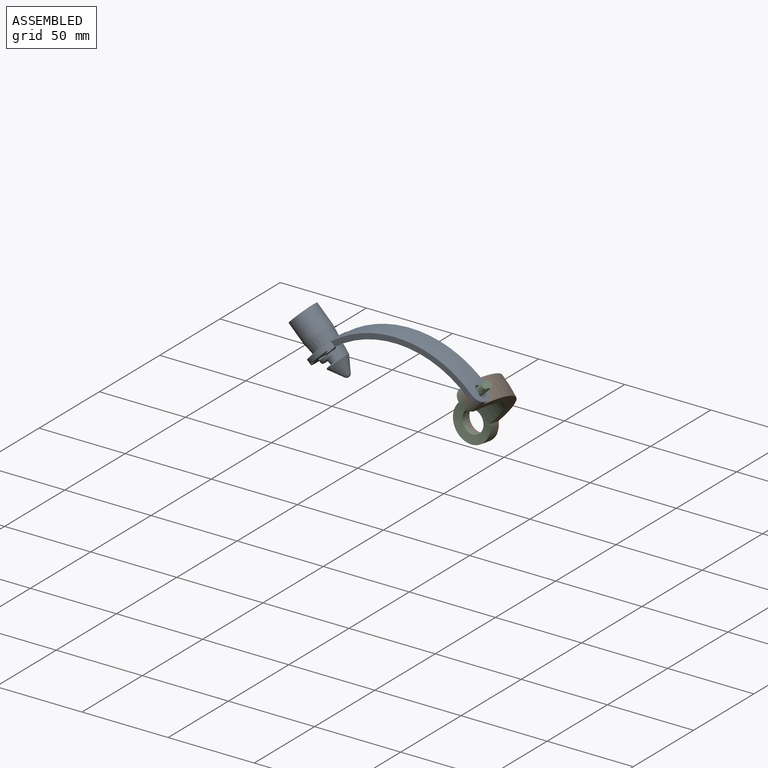
[diagram: assembled view]
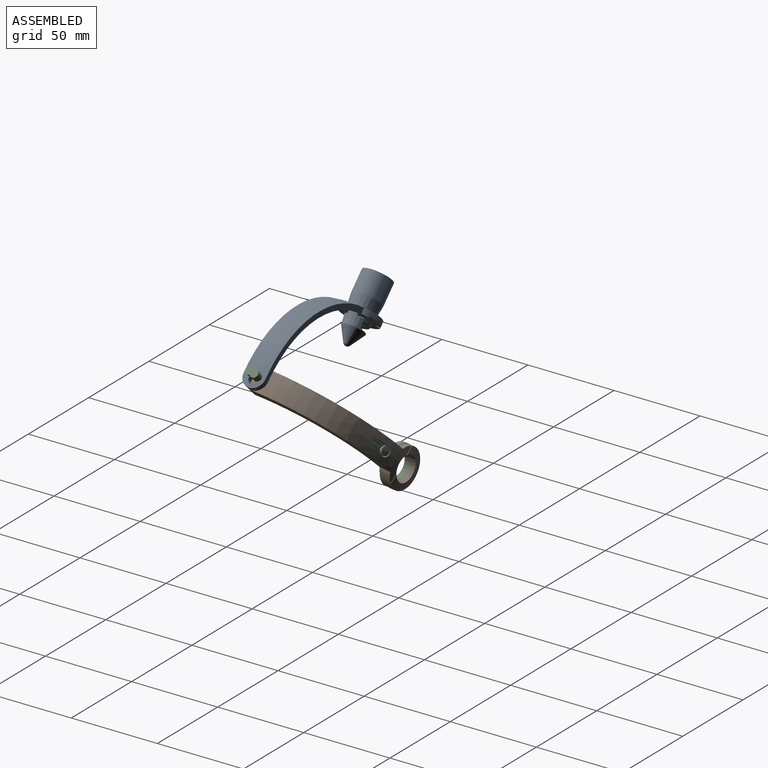
[diagram: assembled view, second angle]
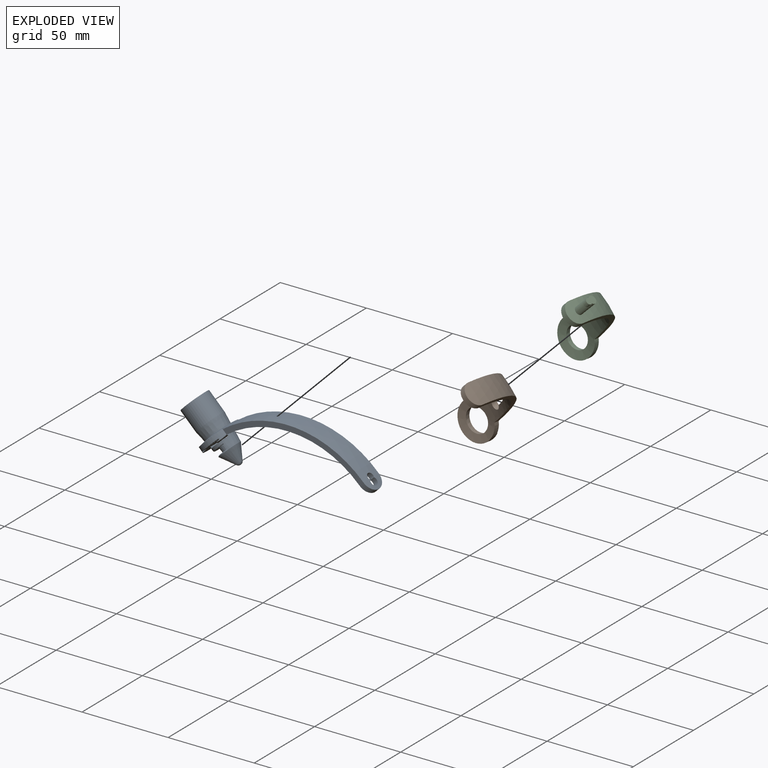
[diagram: exploded view]
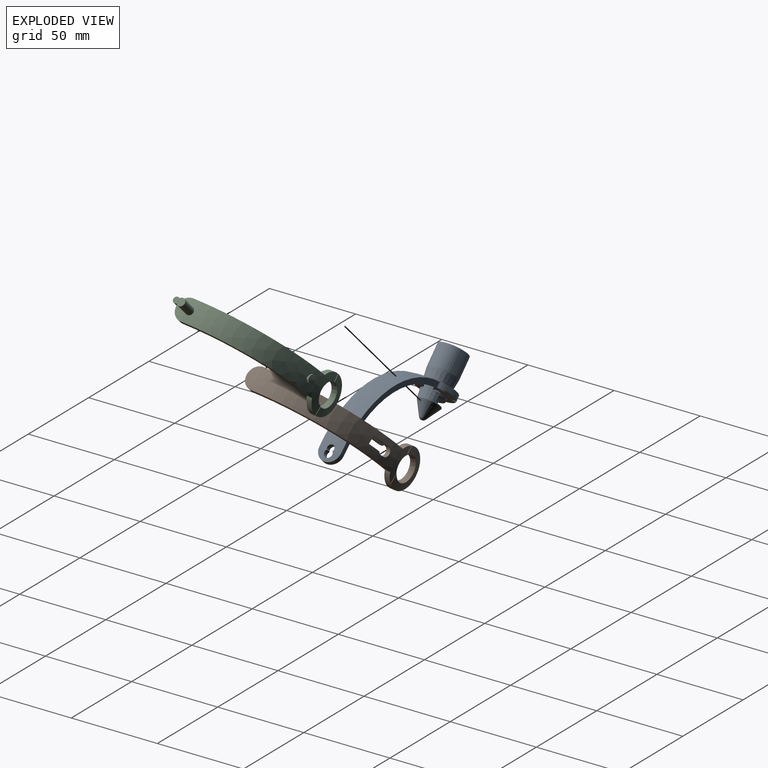
[diagram: exploded view, second angle]
ASSEMBLY  parts=3 mates=2
PART A: 36 faces, bbox 112.8x26.4x33.2 mm
  f0: sphere r=60.07mm, area 1159.1mm2, adj f1,f2,f6,f9,f10,f11,f26,f27
  f1: cone r=6.43mm half-angle=6.9deg, axis (-0.71,0,0.71), area 134.6mm2, adj f0,f2,f3,f4,f5,f17,f21,f24
  f2: cone r=6.43mm half-angle=6.9deg, axis (-0.71,0,0.71), area 0.2mm2, adj f0,f1,f33
  f3: cone r=46.21mm half-angle=50deg, axis (-1,0,0), area 0.2mm2, adj f1,f5,f30
  f4: cone r=46.21mm half-angle=50deg, axis (-1,0,0), area 0.2mm2, adj f1,f5,f30
  f5: sphere r=60.32mm, area 100.4mm2, adj f1,f3,f4,f6,f29,f30,f32
  f6: cylinder r=11.43mm len=22.86mm, axis (0.71,0,-0.71), area 177.8mm2, adj f0,f5,f10,f11,f13,f29,f30,f32
  f7: cone r=3.13mm half-angle=3.1deg, axis (-0.71,0,0.71), area 530mm2, adj f14,f30
  f8: sphere r=63.25mm, area 1174.1mm2, adj f9,f10,f11,f12,f26,f27
  f9: cylinder r=2.28mm len=5mm, axis (0.73,0,0.68), area 34mm2, adj f0,f8,f27
  f10: plane 81.94x20.69mm, normal (0,1,0), area 277.1mm2, adj f0,f6,f8,f12,f13,f26
  f11: plane 81.94x20.69mm, normal (0,-1,0), area 277.1mm2, adj f0,f6,f8,f12,f13,f26
  f12: cone r=51.37mm half-angle=54deg, axis (-1,0,0), area 3.2mm2, adj f8,f10,f11,f13
  f13: sphere r=63.5mm, area 217.3mm2, adj f6,f10,f11,f12,f16
  f14: plane 16.76x11.85mm, normal (-0.71,0,0.71), area 160.1mm2, adj f7,f15
  f15: cylinder r=8.38mm len=20.83mm, axis (0.71,0,-0.71), area 668.9mm2, adj f14,f16
  f16: cone r=6.43mm half-angle=6.9deg, axis (-0.71,0,0.71), area 310.5mm2, adj f13,f15
  f17: cone r=1.8mm half-angle=30.4deg, axis (-0.71,0,0.71), area 236.6mm2, adj f1,f18,f22
  f18: sphere r=2.09mm, area 13.5mm2, adj f17
  f19: cone r=3.81mm half-angle=3.1deg, axis (-0.71,0,0.71), area 47.6mm2, adj f20,f23,f24,f25
  f20: sphere r=56.9mm, area 56.4mm2, adj f19,f21,f24,f25
  f21: torus R=6.4mm, axis (-0.71,0,0.71), area 23.1mm2, adj f1,f20,f24,f25
  f22: torus R=5.93mm, axis (-0.71,0,0.71), area 22mm2, adj f17,f23,f24,f25
  f23: sphere r=53.98mm, area 49.2mm2, adj f19,f22,f24,f25
  f24: plane 3.67x3.54mm, normal (-0.58,0.57,-0.58), area 8.7mm2, adj f1,f19,f20,f21,f22,f23
  f25: plane 3.67x3.54mm, normal (-0.58,-0.57,-0.58), area 8.7mm2, adj f1,f19,f20,f21,f22,f23
  f26: cylinder r=6.35mm len=12.7mm, axis (-0.71,0,-0.71), area 63.7mm2, adj f0,f8,f10,f11
  f27: cylinder r=2.03mm len=4.64mm, axis (-0.73,0,-0.68), area 28.5mm2, adj f0,f8,f9
  f28: plane 5.92x0.91mm, normal (0.71,0,0.71), area 7mm2, adj f1,f30,f31
  f29: plane 3.62x0.32mm, normal (0.71,0,0.71), area 0.8mm2, adj f5,f6,f30
  f30: plane 22.88x9.36mm, normal (0.71,0,-0.71), area 212.6mm2, adj f1,f3,f4,f5,f6,f7,f28,f29
  f31: plane 14.16x9.34mm, normal (-0.71,0,0.71), area 123.3mm2, adj f1,f28,f33,f35
  f32: plane 3.62x0.32mm, normal (0.71,0,0.71), area 0.8mm2, adj f5,f6,f30
  f33: plane 18.67x0.91mm, normal (-0.71,0,-0.71), area 11.2mm2, adj f0,f1,f2,f6,f30,f31
  f34: cone r=0mm half-angle=28.2deg, axis (-0.71,0,0.71), area 65.4mm2, adj f35
  f35: cone r=3.13mm half-angle=3.1deg, axis (-0.71,0,0.71), area 1mm2, adj f31,f34
PART B: 21 faces, bbox 96.8x31.8x29.9 mm
  f0: sphere r=56.9mm, area 1144.5mm2, adj f2,f3,f6,f7,f8,f9,f14,f15
  f1: sphere r=60.07mm, area 1134.9mm2, adj f6,f7,f11,f12,f14,f15,f16,f17
  f2: plane 7.97x4.53mm, normal (0,1,0), area 14.9mm2, adj f0,f4,f17,f20
  f3: plane 7.97x4.53mm, normal (0,-1,0), area 14.9mm2, adj f0,f5,f17,f20
  f4: cylinder r=58.8mm len=9.51mm, axis (0,-1,0), area 10.9mm2, adj f2,f17,f19,f20
  f5: cylinder r=58.8mm len=9.51mm, axis (0,-1,0), area 10.9mm2, adj f3,f17,f18,f20
  f6: plane 77.22x19.75mm, normal (0,1,0), area 261.2mm2, adj f0,f1,f14,f16
  f7: plane 77.22x19.75mm, normal (0,-1,0), area 261.2mm2, adj f0,f1,f14,f16
  f8: cone r=40.93mm half-angle=46deg, axis (-1,0,0), area 1.2mm2, adj f0,f10,f14,f15
  f9: cone r=40.93mm half-angle=46deg, axis (-1,0,0), area 1.2mm2, adj f0,f10,f14,f15
  f10: sphere r=57.15mm, area 135.1mm2, adj f8,f9,f14,f15
  f11: cone r=46.21mm half-angle=50deg, axis (-1,0,0), area 1.4mm2, adj f1,f13,f14,f15
  f12: cone r=46.21mm half-angle=50deg, axis (-1,0,0), area 1.4mm2, adj f1,f13,f14,f15
  f13: sphere r=60.32mm, area 166.4mm2, adj f11,f12,f14,f15
  f14: cylinder r=11.43mm len=22.86mm, axis (0.71,0,-0.71), area 191.3mm2, adj f0,f1,f6,f7,f8,f9,f10,f11
  f15: cone r=6.43mm half-angle=6.9deg, axis (-0.71,0,0.71), area 143.2mm2, adj f0,f1,f8,f9,f10,f11,f12,f13
  f16: cylinder r=6.35mm len=12.7mm, axis (-0.71,0,-0.71), area 63.7mm2, adj f0,f1,f6,f7
  f17: plane 5.6x3.07mm, normal (-0.96,0,-0.29), area 12.8mm2, adj f0,f1,f2,f3,f4,f5,f18,f19
  f18: plane 10.08x5.01mm, normal (0,-1,0), area 12.5mm2, adj f1,f5,f17,f20
  f19: plane 10.08x5.01mm, normal (0,1,0), area 12.5mm2, adj f1,f4,f17,f20
  f20: cylinder r=2.79mm len=6.02mm, axis (0.45,0,-0.89), area 38.7mm2, adj f0,f1,f2,f3,f4,f5,f18,f19
PART C: 20 faces, bbox 97.4x31.8x29.1 mm
  f0: sphere r=56.9mm, area 1169.8mm2, adj f1,f2,f3,f4,f9,f10,f11,f12
  f1: plane 72.67x18.82mm, normal (0,1,0), area 245.3mm2, adj f0,f8,f9,f11
  f2: plane 72.67x18.82mm, normal (0,-1,0), area 245.3mm2, adj f0,f8,f9,f11
  f3: cone r=40.93mm half-angle=46deg, axis (-1,0,0), area 1.2mm2, adj f0,f5,f9,f10
  f4: cone r=40.93mm half-angle=46deg, axis (-1,0,0), area 1.2mm2, adj f0,f5,f9,f10
  f5: sphere r=57.15mm, area 135.1mm2, adj f3,f4,f9,f10
  f6: sphere r=53.98mm, area 247.2mm2, adj f7,f9,f10
  f7: cone r=43.67mm half-angle=54deg, axis (-1,0,0), area 4.2mm2, adj f6,f8,f9
  f8: sphere r=53.72mm, area 1032.4mm2, adj f1,f2,f7,f9,f11
  f9: cylinder r=11.43mm len=22.86mm, axis (0.71,0,-0.71), area 184.7mm2, adj f0,f1,f2,f3,f4,f5,f6,f7
  f10: cone r=6.43mm half-angle=6.9deg, axis (-0.71,0,0.71), area 128.2mm2, adj f0,f3,f4,f5,f6
  f11: cylinder r=6.35mm len=12.7mm, axis (-0.71,0,-0.71), area 63.8mm2, adj f0,f1,f2,f8
  f12: cylinder r=2.28mm len=11.12mm, axis (0.68,0,0.73), area 149.3mm2, adj f0,f13,f14,f15
  f13: plane 5x4.69mm, normal (0.68,0,0.73), area 23.8mm2, adj f12,f14
  f14: cylinder r=1.78mm len=3.78mm, axis (0.68,0,0.73), area 19.8mm2, adj f12,f13,f15
  f15: plane 3.56x2.05mm, normal (-0.68,0,-0.73), area 7.4mm2, adj f12,f14
  f16: plane 5.08x4.53mm, normal (0.45,0,-0.89), area 15.2mm2, adj f17,f19
  f17: cylinder r=1.27mm len=3.13mm, axis (-0.45,0,0.89), area 15.3mm2, adj f0,f16
  f18: cone r=2.54mm half-angle=85deg, axis (0.45,0,-0.89), area 20.3mm2, adj f19
  f19: cylinder r=2.54mm len=5.08mm, axis (-0.45,0,0.89), area 16.7mm2, adj f16,f18
PLACE A t=(-1.41,-3.47,-13.83)mm fixed
PLACE B rot(axis=(-0.71,0,-0.71),95.3deg) t=(-1.41,-3.47,-13.83)mm
PLACE C rot(axis=(-0.71,0,-0.71),95deg) t=(-1.41,-3.47,-13.83)mm
MATE revolute B.f16 <-> C.f11  axis (-0.71,0,-0.71) through (38.57,-3.47,26.15)mm
MATE revolute B.f16 <-> A.f26  axis (-0.71,0,-0.71) through (40.83,-3.47,28.4)mm
